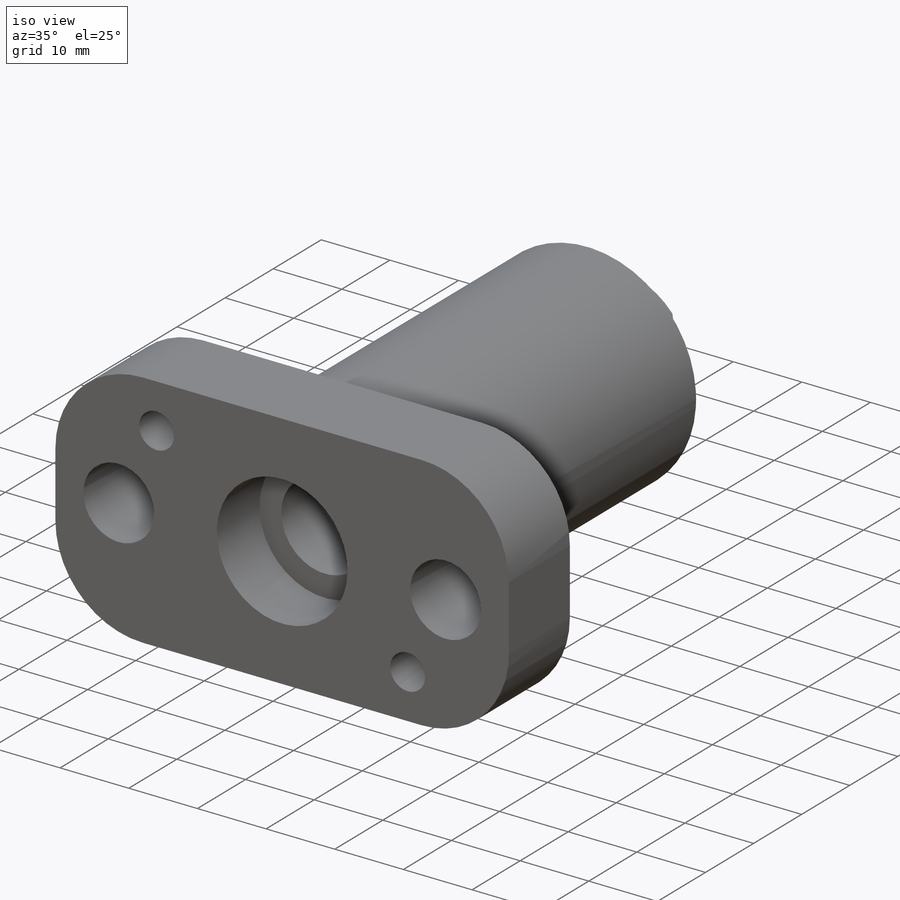
[diagram: iso view]
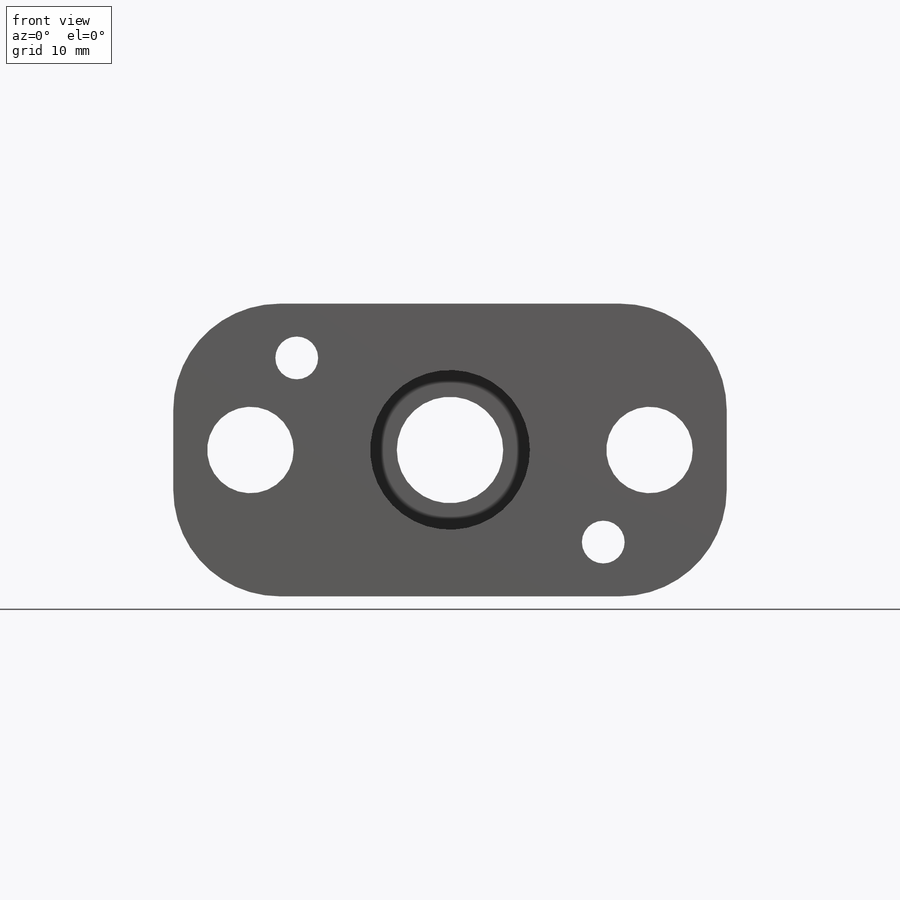
[diagram: front view]
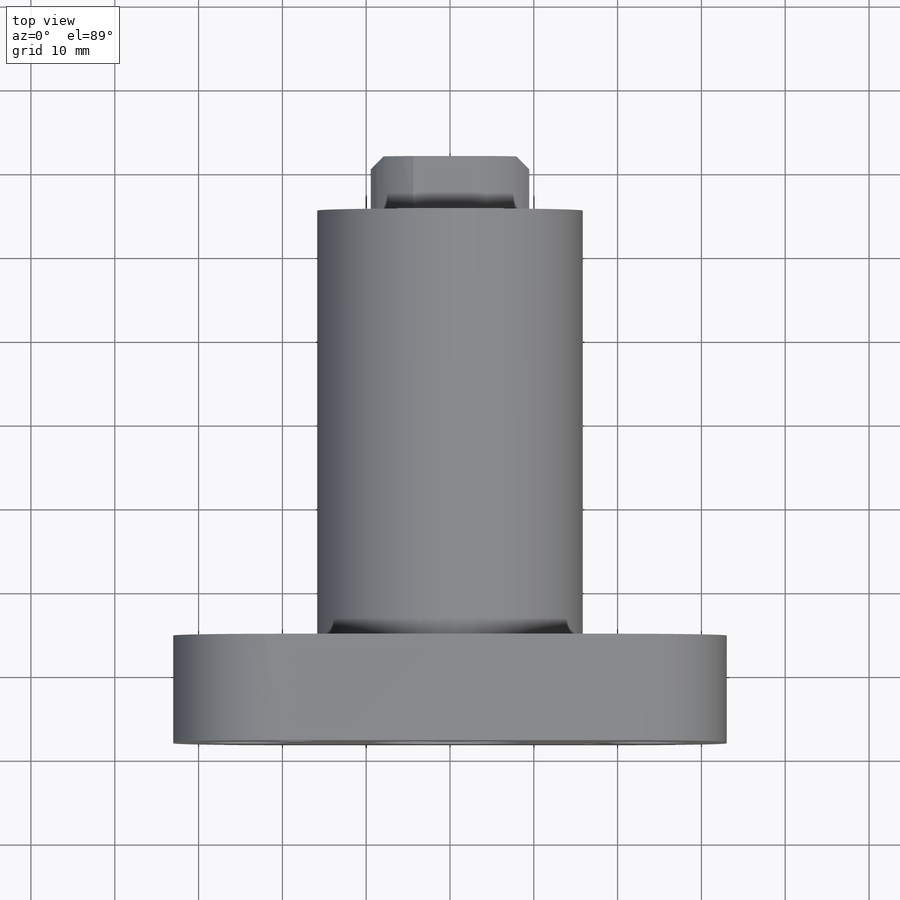
[diagram: top view]
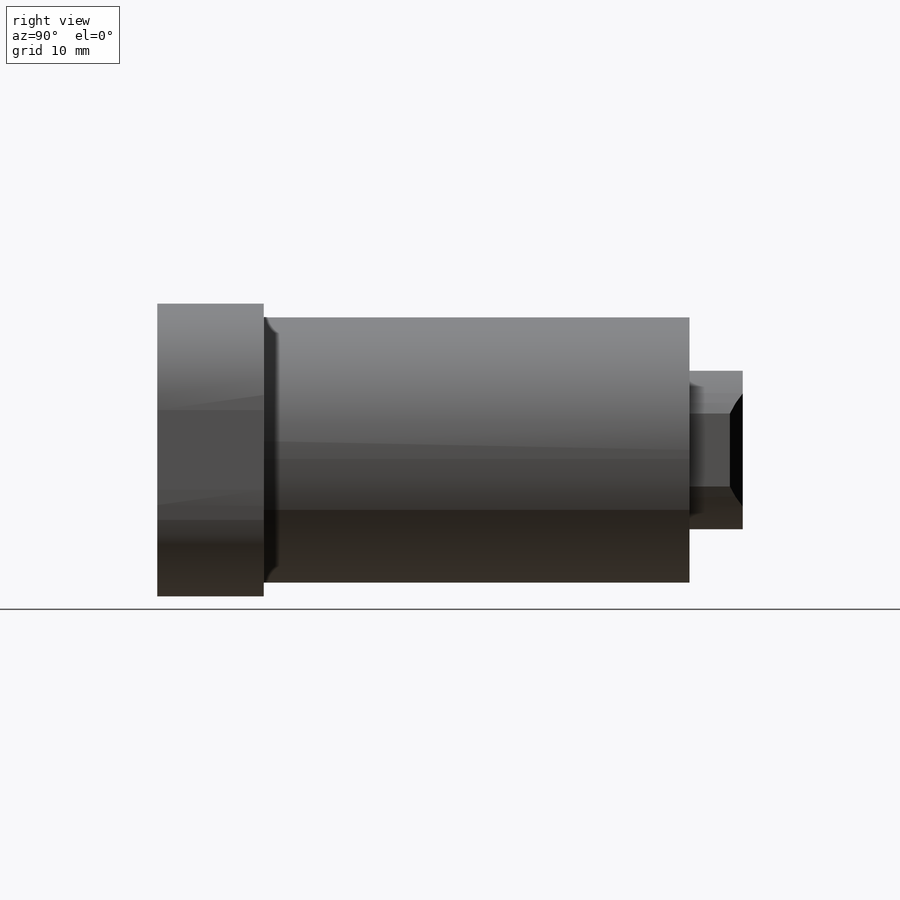
[diagram: right view]
SOLIDWORKS PART (.sldprt)
format: sldprt  version: not decoded by parser v0  size: 323,584 bytes
history: native  units: mm
features: sketch x11, plane x3, extrude x3, cut_extrude x3, hole x2, thread x2, material x1, revolve x1, fillet x1, chamfer x1 (+11 scaffold rows collapsed)
feature tree (39):
  scaffold x11  (default folders/planes/origin — collapsed)
  material  "17-4 PH SSTL, H 1150"
  plane  "XY"
  plane  "XZ"
  plane  "YZ"
  sketch  "Sketch1"  dims[D1=31.6738mm]
  extrude  "Extrude1"  Depth=25.4mm
  sketch  "Sketch2"  dims[c1.D1=~5.410971mm c1.D2=~10.31875mm c2.D1=47.625mm c2.D3=34.925mm c2.D4=66.04mm c2.D5=63.5mm]
  extrude  "Extrude2"  Depth=12.7mm
  sketch  "Sketch3"  dims[c1.D1=25.4mm c1.D2=~25.965899mm c2.D2=0.0deg c2.D3=31.6738mm c2.D4=18.923mm c2.D5=6.35mm c3.D2=31.6738mm]
  revolve  "Revolve1"  Angle=360deg
  sketch  "Sketch4"  dims[D1=12.7mm]
  cut_extrude  "Cut-Extrude1"  [1 undecoded]
  sketch  "Sketch6"  dims[D1=19.05mm]
  cut_extrude  "Cut-Extrude5"  Depth=8.89mm
  sketch  "Sketch7"
  extrude  "Extrude3"  [1 undecoded]
  sketch  "Sketch9"  dims[D1=20.828mm]
  cut_extrude  "Cut-Extrude7"  [1 undecoded]
  fillet  "Fillet1"  Radius=12.7mm
  hole  "1/4-20 Tapped Hole1"  Diameter=5.1054mm Depth=69.85mm
  sketch  "Sketch12"  dims[D1=21.971mm D2=36.576mm]
  sketch  "Sketch11"  dims[hole-wizard template sketch: 60 standard entries collapsed; hole parameters kept: c18.Thru Tap Drill Depth=69.85mm]
  thread  "Hole Thread1"  Diameter=6.35mm  [1 undecoded]
  thread  "Hole Thread2"  Diameter=6.35mm  [1 undecoded]
  hole  "13/32 (0.40625) Diameter Hole1"  Diameter=10.31875mm Depth=69.85mm
  sketch  "Sketch14"  dims[D1=47.625mm]
  sketch  "Sketch13"  dims[hole-wizard template sketch: 60 standard entries collapsed; hole parameters kept: c18.Thru Hole Depth=69.85mm]
  chamfer  "Chamfer2"  Distance=1.524mm Angle=45deg
decode coverage: 20 of 24 modeling features carry decoded parameters
note: ~ marks probable driven/reference dimensions
note: 5 parameter values undecoded
summary: no parameter record found for 3 features
note: suppression state not decoded; provenance and decode notes live in map.json
